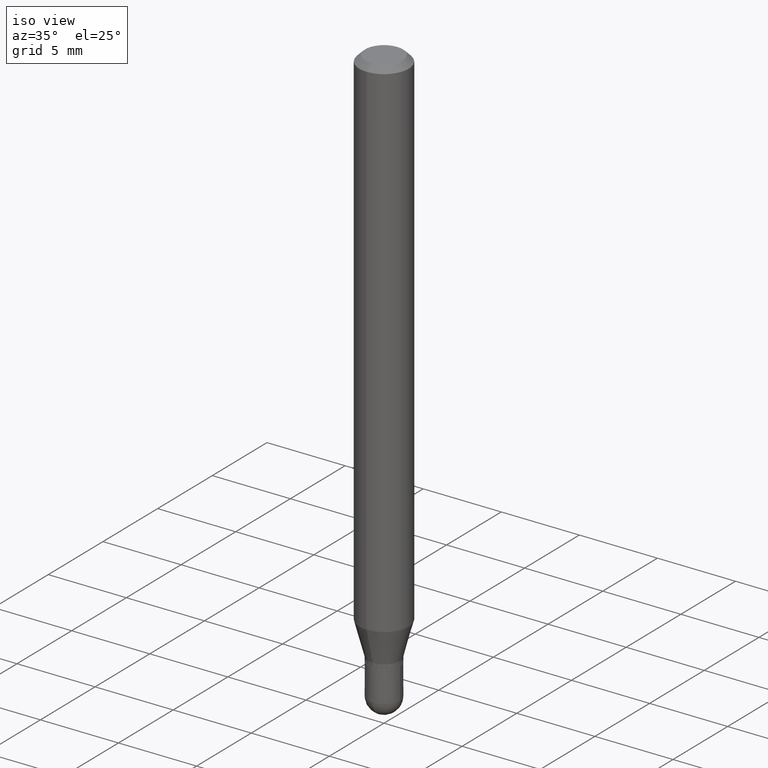
[diagram: clean part render]
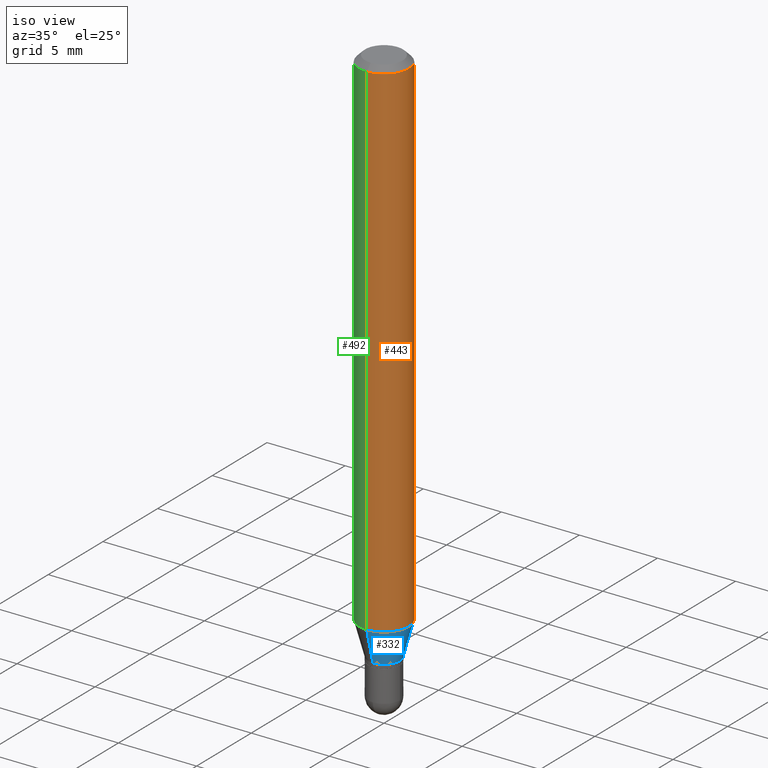
[diagram: same view with three faces highlighted in distinct colors, each labeled with its STEP entity id]
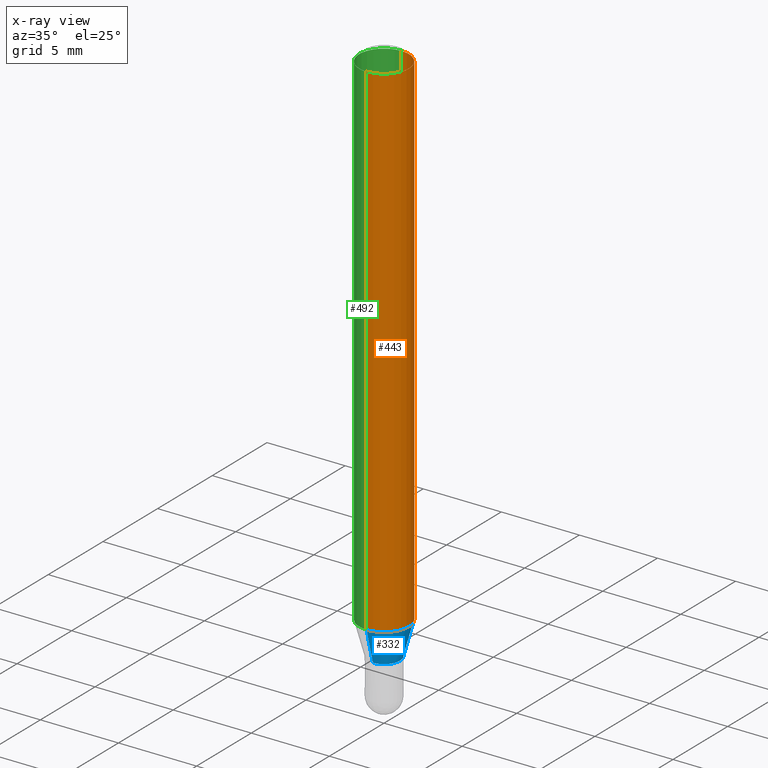
[diagram: x-ray of the same camera — body ghosted, the three highlighted faces saturated]
A machine part, iso view with three faces highlighted in distinct colors.
The next image is the same camera in x-ray (body ghosted, the three faces saturated) — at least one of them is partly hidden behind the body in this view.
Their STEP definitions:

[orange] entity #443 — the highlighted cylindrical surface (edge-blend (fillet) strip) has radius 1.5875 mm, axis along (-0, 0, 1).
#24 = LINE ( 'NONE', #338, #96 ) ;
#27 = DIRECTION ( 'NONE',  ( -6.982962677686265922E-15, -1.000000000000000000, 4.370956789862821150E-15 ) ) ;
#39 = CARTESIAN_POINT ( 'NONE',  ( 0.000000000000000000, 0.000000000000000000, 0.000000000000000000 ) ) ;
#88 = AXIS2_PLACEMENT_3D ( 'NONE', #39, #156, #423 ) ;
#96 = VECTOR ( 'NONE', #419, 39.37007874015748143 ) ;
#133 = AXIS2_PLACEMENT_3D ( 'NONE', #374, #370, #27 ) ;
#142 = DIRECTION ( 'NONE',  ( -6.982962677686265922E-15, -1.000000000000000000, 3.483106191921935554E-15 ) ) ;
#156 = DIRECTION ( 'NONE',  ( -2.445465007158633692E-29, 3.491486779265324816E-15, 1.000000000000000000 ) ) ;
#157 = ORIENTED_EDGE ( 'NONE', *, *, #304, .T. ) ;
#159 = FACE_OUTER_BOUND ( 'NONE', #484, .T. ) ;
#181 = VERTEX_POINT ( 'NONE', #325 ) ;
#183 = VERTEX_POINT ( 'NONE', #485 ) ;
#185 = ORIENTED_EDGE ( 'NONE', *, *, #377, .F. ) ;
#203 = ORIENTED_EDGE ( 'NONE', *, *, #359, .T. ) ;
#207 = VERTEX_POINT ( 'NONE', #323 ) ;
#223 = LINE ( 'NONE', #225, #276 ) ;
#225 = CARTESIAN_POINT ( 'NONE',  ( 4.440892098500625669E-16, 0.06250000000000000000, -2.182179237040828010E-16 ) ) ;
#269 = CIRCLE ( 'NONE', #334, 0.06250000000000000000 ) ;
#276 = VECTOR ( 'NONE', #456, 39.37007874015748143 ) ;
#304 = EDGE_CURVE ( 'NONE', #181, #207, #223, .T. ) ;
#323 = CARTESIAN_POINT ( 'NONE',  ( 4.440892098500941706E-16, 0.06249999999999995143, -0.01500000000000054588 ) ) ;
#325 = CARTESIAN_POINT ( 'NONE',  ( 4.440892098500941706E-16, 0.06249999999999554523, -1.286028856829700695 ) ) ;
#330 = CARTESIAN_POINT ( 'NONE',  ( -4.364351673553912750E-16, -0.06250000000000005551, -0.01500000000000011047 ) ) ;
#334 = AXIS2_PLACEMENT_3D ( 'NONE', #335, #498, #142 ) ;
#335 = CARTESIAN_POINT ( 'NONE',  ( 3.668197510738031270E-31, -5.237230168898101436E-17, -0.01500000000000032904 ) ) ;
#338 = CARTESIAN_POINT ( 'NONE',  ( -4.364351673553916201E-16, -0.06250000000000000000, 2.182179237040828010E-16 ) ) ;
#359 = EDGE_CURVE ( 'NONE', #183, #181, #373, .T. ) ;
#369 = EDGE_CURVE ( 'NONE', #183, #420, #24, .T. ) ;
#370 = DIRECTION ( 'NONE',  ( -2.445465007158633692E-29, 3.491486779265324816E-15, 1.000000000000000000 ) ) ;
#373 = CIRCLE ( 'NONE', #133, 0.06250000000000000000 ) ;
#374 = CARTESIAN_POINT ( 'NONE',  ( 3.144938567573252550E-29, -4.490152751374598904E-15, -1.286028856829700473 ) ) ;
#377 = EDGE_CURVE ( 'NONE', #420, #207, #269, .T. ) ;
#379 = CYLINDRICAL_SURFACE ( 'NONE', #88, 0.06250000000000000000 ) ;
#390 = ORIENTED_EDGE ( 'NONE', *, *, #369, .F. ) ;
#419 = DIRECTION ( 'NONE',  ( -2.445465007158633692E-29, 3.491486779265324816E-15, 1.000000000000000000 ) ) ;
#420 = VERTEX_POINT ( 'NONE', #330 ) ;
#423 = DIRECTION ( 'NONE',  ( -6.982962677686265922E-15, -1.000000000000000000, 3.491486779265324816E-15 ) ) ;
#443 = ADVANCED_FACE ( 'NONE', ( #159 ), #379, .T. ) ;
#456 = DIRECTION ( 'NONE',  ( -2.445465007158633692E-29, 3.491486779265324816E-15, 1.000000000000000000 ) ) ;
#484 = EDGE_LOOP ( 'NONE', ( #203, #157, #185, #390 ) ) ;
#485 = CARTESIAN_POINT ( 'NONE',  ( -4.364351673553598685E-16, -0.06250000000000444089, -1.286028856829700251 ) ) ;
#498 = DIRECTION ( 'NONE',  ( -2.445465007158633692E-29, 3.491486779265324816E-15, 1.000000000000000000 ) ) ;

[blue] entity #332 — the highlighted conical surface has half-angle 15 deg.
#1 = DIRECTION ( 'NONE',  ( -1.807323732225330534E-15, -0.2588190451025182415, 0.9659258262890689783 ) ) ;
#11 = DIRECTION ( 'NONE',  ( -2.445465007158633692E-29, 3.491486779265324816E-15, 1.000000000000000000 ) ) ;
#15 = EDGE_CURVE ( 'NONE', #469, #183, #470, .T. ) ;
#16 = DIRECTION ( 'NONE',  ( -6.982962677686265133E-15, -1.000000000000000000, 6.829619984160670865E-15 ) ) ;
#27 = DIRECTION ( 'NONE',  ( -6.982962677686265922E-15, -1.000000000000000000, 4.370956789862821150E-15 ) ) ;
#31 = EDGE_CURVE ( 'NONE', #263, #181, #326, .T. ) ;
#54 = CARTESIAN_POINT ( 'NONE',  ( 3.641531520770834203E-16, 0.03999999999999514361, -1.370000000000000329 ) ) ;
#58 = EDGE_LOOP ( 'NONE', ( #430, #362, #339, #136 ) ) ;
#72 = VECTOR ( 'NONE', #286, 39.37007874015748143 ) ;
#99 = FACE_OUTER_BOUND ( 'NONE', #58, .T. ) ;
#104 = CARTESIAN_POINT ( 'NONE',  ( 3.350287059807328626E-29, -4.783336887593495309E-15, -1.370000000000000107 ) ) ;
#120 = AXIS2_PLACEMENT_3D ( 'NONE', #405, #11, #130 ) ;
#130 = DIRECTION ( 'NONE',  ( -6.982962677686265133E-15, -1.000000000000000000, 6.829619984160670865E-15 ) ) ;
#133 = AXIS2_PLACEMENT_3D ( 'NONE', #374, #370, #27 ) ;
#136 = ORIENTED_EDGE ( 'NONE', *, *, #15, .F. ) ;
#143 = EDGE_CURVE ( 'NONE', #469, #263, #435, .T. ) ;
#151 = CARTESIAN_POINT ( 'NONE',  ( -2.793185071074166094E-16, -0.04000000000000470540, -1.369999999999999885 ) ) ;
#181 = VERTEX_POINT ( 'NONE', #325 ) ;
#183 = VERTEX_POINT ( 'NONE', #485 ) ;
#184 = DIRECTION ( 'NONE',  ( -2.445465007158633692E-29, 3.491486779265324816E-15, 1.000000000000000000 ) ) ;
#212 = CONICAL_SURFACE ( 'NONE', #402, 0.03999999999999992450, 0.2617993877991502960 ) ;
#224 = VECTOR ( 'NONE', #1, 39.37007874015748143 ) ;
#263 = VERTEX_POINT ( 'NONE', #54 ) ;
#286 = DIRECTION ( 'NONE',  ( 1.839019923739600710E-15, 0.2588190451025250138, 0.9659258262890670910 ) ) ;
#325 = CARTESIAN_POINT ( 'NONE',  ( 4.440892098500941706E-16, 0.06249999999999554523, -1.286028856829700695 ) ) ;
#326 = LINE ( 'NONE', #486, #72 ) ;
#332 = ADVANCED_FACE ( 'NONE', ( #99 ), #212, .T. ) ;
#339 = ORIENTED_EDGE ( 'NONE', *, *, #359, .F. ) ;
#359 = EDGE_CURVE ( 'NONE', #183, #181, #373, .T. ) ;
#362 = ORIENTED_EDGE ( 'NONE', *, *, #31, .T. ) ;
#370 = DIRECTION ( 'NONE',  ( -2.445465007158633692E-29, 3.491486779265324816E-15, 1.000000000000000000 ) ) ;
#373 = CIRCLE ( 'NONE', #133, 0.06250000000000000000 ) ;
#374 = CARTESIAN_POINT ( 'NONE',  ( 3.144938567573252550E-29, -4.490152751374598904E-15, -1.286028856829700473 ) ) ;
#389 = CARTESIAN_POINT ( 'NONE',  ( -2.793185071074166094E-16, -0.04000000000000470540, -1.369999999999999885 ) ) ;
#402 = AXIS2_PLACEMENT_3D ( 'NONE', #104, #184, #16 ) ;
#405 = CARTESIAN_POINT ( 'NONE',  ( 3.350287059807328626E-29, -4.783336887593495309E-15, -1.370000000000000107 ) ) ;
#430 = ORIENTED_EDGE ( 'NONE', *, *, #143, .T. ) ;
#435 = CIRCLE ( 'NONE', #120, 0.03999999999999992450 ) ;
#469 = VERTEX_POINT ( 'NONE', #151 ) ;
#470 = LINE ( 'NONE', #389, #224 ) ;
#485 = CARTESIAN_POINT ( 'NONE',  ( -4.364351673553598685E-16, -0.06250000000000444089, -1.286028856829700251 ) ) ;
#486 = CARTESIAN_POINT ( 'NONE',  ( 2.842170943040729659E-16, 0.03999999999999514361, -1.370000000000000329 ) ) ;

[green] entity #492 — the highlighted cylindrical surface (edge-blend (fillet) strip) has radius 1.5875 mm, axis along (-0, 0, 1).
#24 = LINE ( 'NONE', #338, #96 ) ;
#30 = CYLINDRICAL_SURFACE ( 'NONE', #411, 0.06250000000000000000 ) ;
#76 = DIRECTION ( 'NONE',  ( -6.982962677686265922E-15, -1.000000000000000000, 3.491486779265324816E-15 ) ) ;
#96 = VECTOR ( 'NONE', #419, 39.37007874015748143 ) ;
#107 = CIRCLE ( 'NONE', #436, 0.06250000000000000000 ) ;
#116 = DIRECTION ( 'NONE',  ( -6.982962677686265922E-15, -1.000000000000000000, 3.483106191921935554E-15 ) ) ;
#139 = DIRECTION ( 'NONE',  ( -6.982962677686265922E-15, -1.000000000000000000, 4.370956789862821150E-15 ) ) ;
#162 = ORIENTED_EDGE ( 'NONE', *, *, #324, .T. ) ;
#181 = VERTEX_POINT ( 'NONE', #325 ) ;
#183 = VERTEX_POINT ( 'NONE', #485 ) ;
#207 = VERTEX_POINT ( 'NONE', #323 ) ;
#223 = LINE ( 'NONE', #225, #276 ) ;
#225 = CARTESIAN_POINT ( 'NONE',  ( 4.440892098500625669E-16, 0.06250000000000000000, -2.182179237040828010E-16 ) ) ;
#247 = ORIENTED_EDGE ( 'NONE', *, *, #471, .F. ) ;
#265 = CARTESIAN_POINT ( 'NONE',  ( 0.000000000000000000, 0.000000000000000000, 0.000000000000000000 ) ) ;
#267 = DIRECTION ( 'NONE',  ( -2.445465007158633692E-29, 3.491486779265324816E-15, 1.000000000000000000 ) ) ;
#276 = VECTOR ( 'NONE', #456, 39.37007874015748143 ) ;
#283 = EDGE_LOOP ( 'NONE', ( #460, #162, #409, #247 ) ) ;
#304 = EDGE_CURVE ( 'NONE', #181, #207, #223, .T. ) ;
#309 = CARTESIAN_POINT ( 'NONE',  ( 3.668197510738031270E-31, -5.237230168898101436E-17, -0.01500000000000032904 ) ) ;
#323 = CARTESIAN_POINT ( 'NONE',  ( 4.440892098500941706E-16, 0.06249999999999995143, -0.01500000000000054588 ) ) ;
#324 = EDGE_CURVE ( 'NONE', #181, #183, #107, .T. ) ;
#325 = CARTESIAN_POINT ( 'NONE',  ( 4.440892098500941706E-16, 0.06249999999999554523, -1.286028856829700695 ) ) ;
#328 = CARTESIAN_POINT ( 'NONE',  ( 3.144938567573252550E-29, -4.490152751374598904E-15, -1.286028856829700473 ) ) ;
#330 = CARTESIAN_POINT ( 'NONE',  ( -4.364351673553912750E-16, -0.06250000000000005551, -0.01500000000000011047 ) ) ;
#338 = CARTESIAN_POINT ( 'NONE',  ( -4.364351673553916201E-16, -0.06250000000000000000, 2.182179237040828010E-16 ) ) ;
#340 = DIRECTION ( 'NONE',  ( -2.445465007158633692E-29, 3.491486779265324816E-15, 1.000000000000000000 ) ) ;
#369 = EDGE_CURVE ( 'NONE', #183, #420, #24, .T. ) ;
#394 = AXIS2_PLACEMENT_3D ( 'NONE', #309, #267, #116 ) ;
#409 = ORIENTED_EDGE ( 'NONE', *, *, #369, .T. ) ;
#411 = AXIS2_PLACEMENT_3D ( 'NONE', #265, #340, #76 ) ;
#419 = DIRECTION ( 'NONE',  ( -2.445465007158633692E-29, 3.491486779265324816E-15, 1.000000000000000000 ) ) ;
#420 = VERTEX_POINT ( 'NONE', #330 ) ;
#436 = AXIS2_PLACEMENT_3D ( 'NONE', #328, #455, #139 ) ;
#455 = DIRECTION ( 'NONE',  ( -2.445465007158633692E-29, 3.491486779265324816E-15, 1.000000000000000000 ) ) ;
#456 = DIRECTION ( 'NONE',  ( -2.445465007158633692E-29, 3.491486779265324816E-15, 1.000000000000000000 ) ) ;
#460 = ORIENTED_EDGE ( 'NONE', *, *, #304, .F. ) ;
#466 = FACE_OUTER_BOUND ( 'NONE', #283, .T. ) ;
#471 = EDGE_CURVE ( 'NONE', #207, #420, #503, .T. ) ;
#485 = CARTESIAN_POINT ( 'NONE',  ( -4.364351673553598685E-16, -0.06250000000000444089, -1.286028856829700251 ) ) ;
#492 = ADVANCED_FACE ( 'NONE', ( #466 ), #30, .T. ) ;
#503 = CIRCLE ( 'NONE', #394, 0.06250000000000000000 ) ;